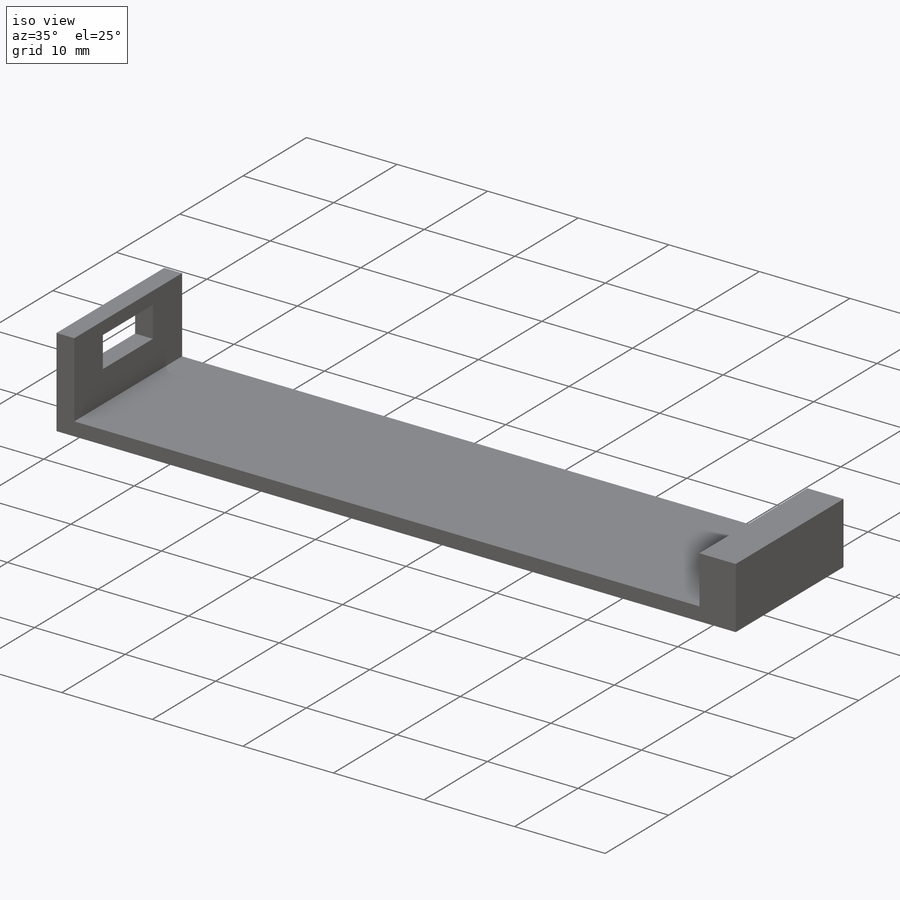
[diagram: iso view]
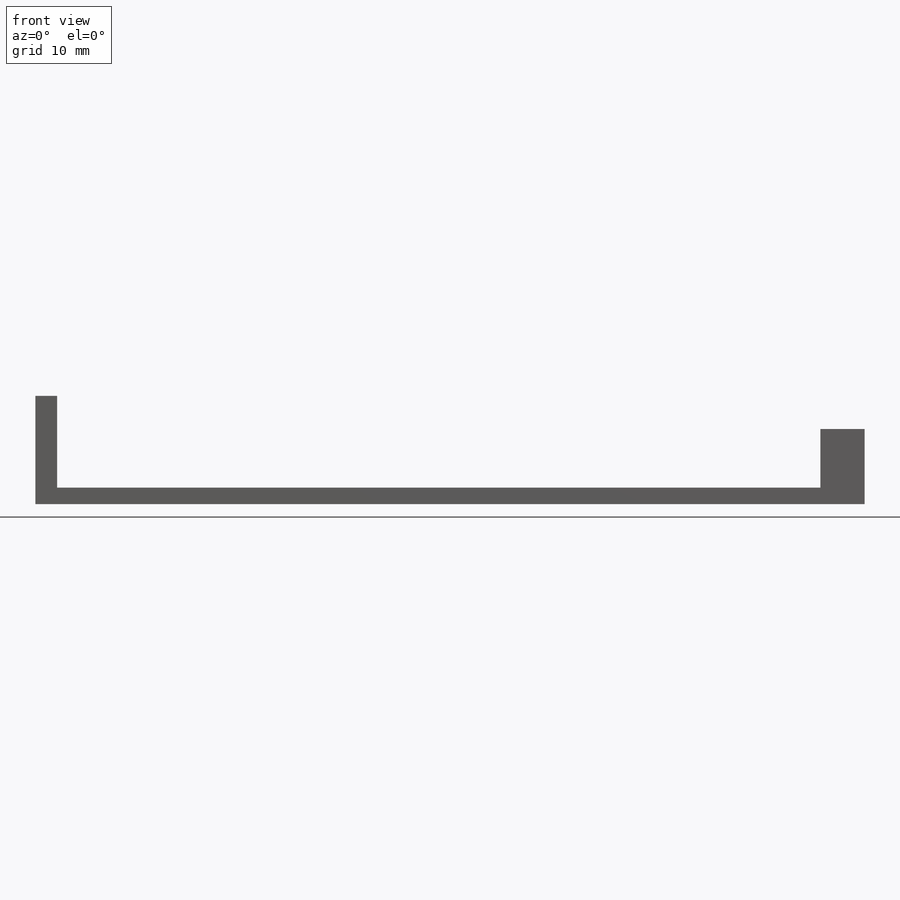
[diagram: front view]
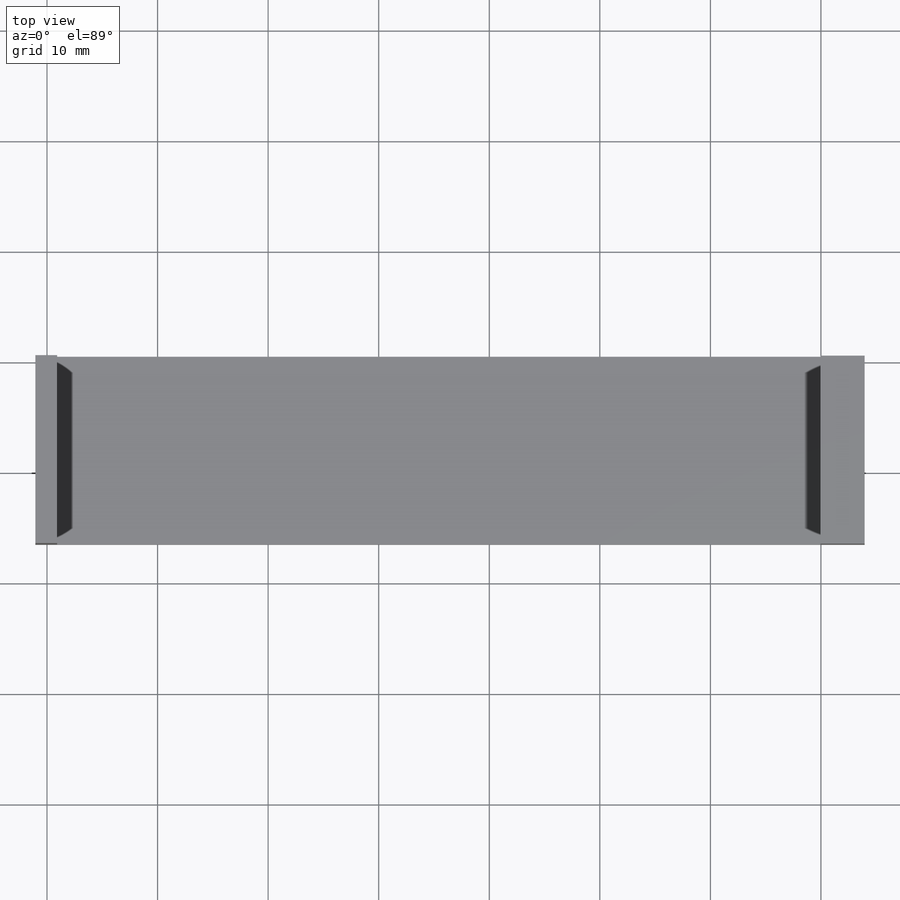
[diagram: top view]
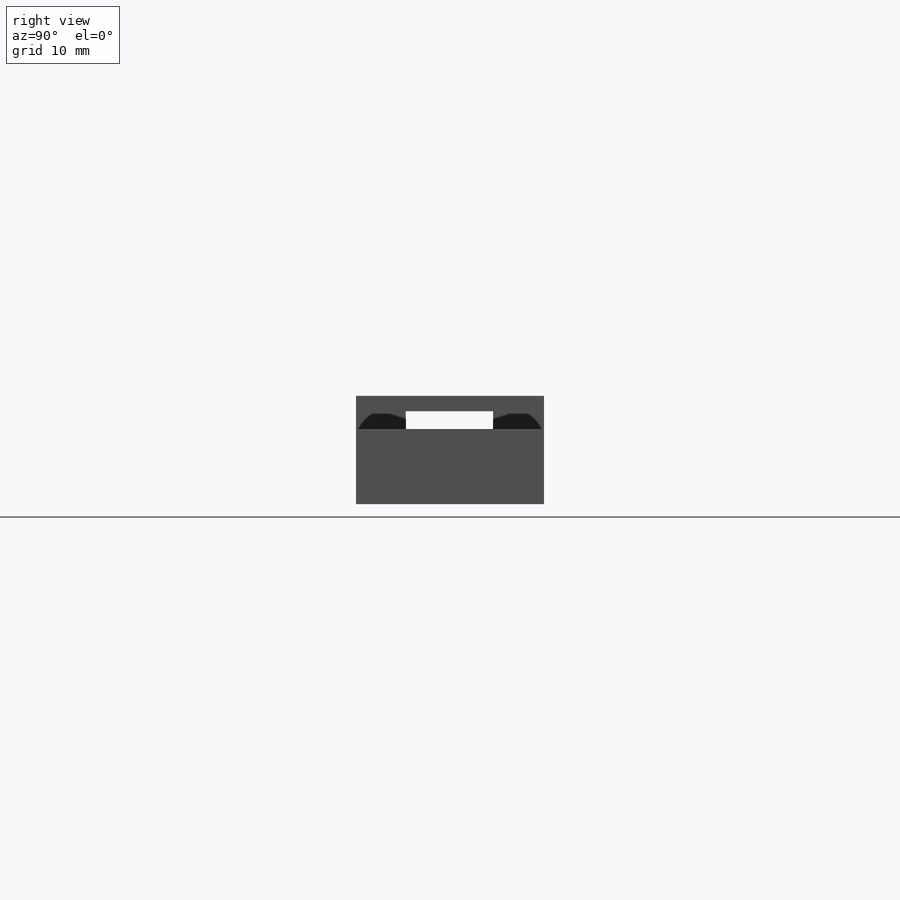
[diagram: right view]
SOLIDWORKS PART (.sldprt)
format: sldprt  version: not decoded by parser v0  size: 199,168 bytes
history: native  units: mm
features: sketch x5, extrude x3, cut_extrude x2, material x1 (+12 scaffold rows collapsed)
feature tree (23):
  scaffold x12  (default folders/planes/origin — collapsed)
  material  "Material <not specified>"
  sketch  "Sketch1"  dims[D1=75.0mm D2=17.0mm]
  extrude  "Boss-Extrude1"  Depth=1.5mm
  sketch  "Sketch2"  dims[c1.D1=2.0mm c1.D2=2.0mm c1.D3=2.0mm c2.D1=4.0mm c2.D2=4.0mm c2.D3=4.5mm c2.D4=4.5mm c3.D3=69.0mm c3.D4=2.0mm]
  extrude  "Boss-Extrude2"  Depth=5.3mm
  sketch  "Sketch3"  dims[D1=7.0mm D2=7.0mm D3=2.0mm D4=2.0mm D5=1.3mm D6=1.3mm]
  cut_extrude  "Cut-Extrude1"  Depth=2.1mm
  sketch  "Sketch4"
  extrude  "Boss-Extrude3"  Depth=3mm
  sketch  "Sketch5"  dims[c1.D1=4.0mm c1.D2=4.0mm c1.D3=3.5mm c1.D4=3.5mm c1.D5=5.0mm c1.D6=5.0mm c1.D7=1.3mm c2.D5=3.4mm c2.D6=3.4mm]
  cut_extrude  "Cut-Extrude3"  Depth=33mm
decode coverage: 9 of 10 modeling features carry decoded parameters
note: suppression state not decoded; provenance and decode notes live in map.json
